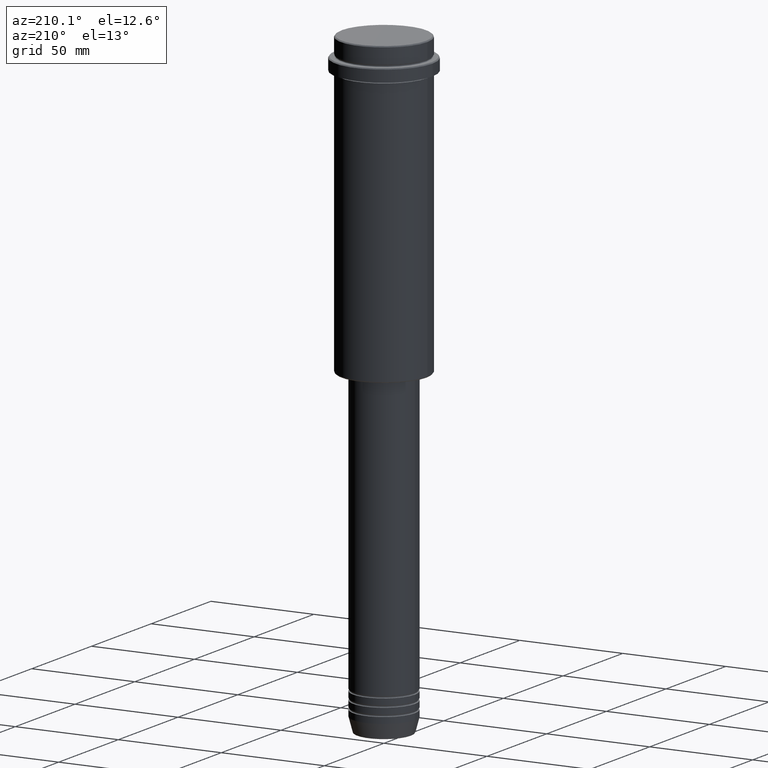
[diagram: clean part render]
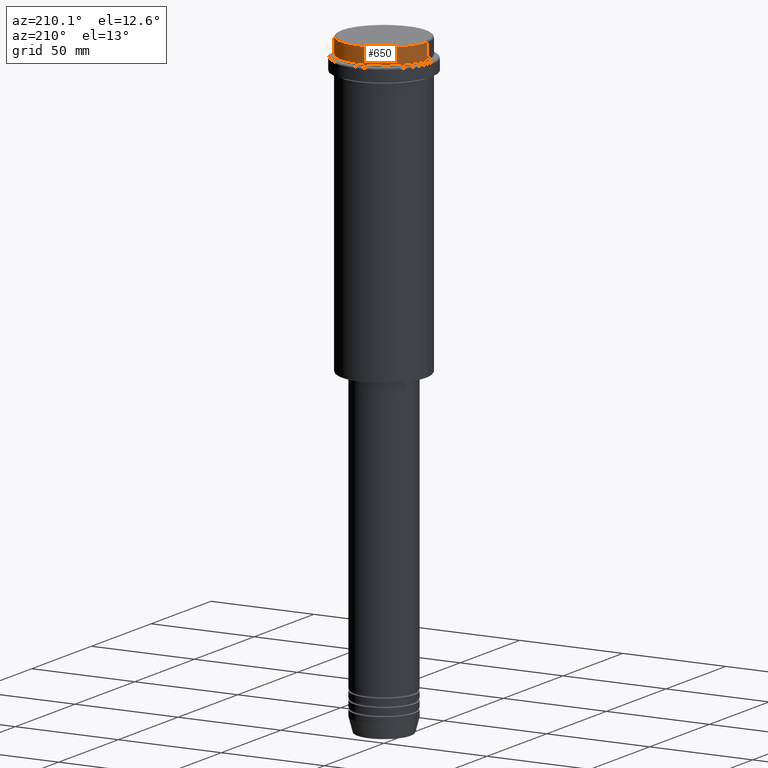
[diagram: same view with one face highlighted and labeled with its STEP entity id]
A machine part, auxiliary view. The second image highlights one B-rep face of the part: STEP entity #650.
In plain terms, the highlighted cylindrical surface (partial cylindrical patch) has radius 21 mm, axis along (-0, -0, 1).
Its self-contained STEP definition (entity closure, byte-faithful):
#54 = ORIENTED_EDGE ( 'NONE', *, *, #1259, .F. ) ;
#130 = EDGE_LOOP ( 'NONE', ( #496, #516, #820, #54 ) ) ;
#180 = CARTESIAN_POINT ( 'NONE',  ( -21.00000000000000000, 2.571758278209441661E-15, 0.000000000000000000 ) ) ;
#284 = LINE ( 'NONE', #180, #1417 ) ;
#342 = CIRCLE ( 'NONE', #1416, 21.00000000000000000 ) ;
#373 = DIRECTION ( 'NONE',  ( 1.000000000000000000, 0.000000000000000000, 0.000000000000000000 ) ) ;
#388 = CARTESIAN_POINT ( 'NONE',  ( 0.000000000000000000, 0.000000000000000000, 0.000000000000000000 ) ) ;
#426 = VERTEX_POINT ( 'NONE', #778 ) ;
#493 = DIRECTION ( 'NONE',  ( -0.000000000000000000, -0.000000000000000000, 1.000000000000000000 ) ) ;
#496 = ORIENTED_EDGE ( 'NONE', *, *, #639, .T. ) ;
#501 = FACE_OUTER_BOUND ( 'NONE', #130, .T. ) ;
#516 = ORIENTED_EDGE ( 'NONE', *, *, #1279, .T. ) ;
#552 = CARTESIAN_POINT ( 'NONE',  ( -21.00000000000000000, 2.571758278209441661E-15, -7.999999999999998224 ) ) ;
#575 = VERTEX_POINT ( 'NONE', #1125 ) ;
#595 = CARTESIAN_POINT ( 'NONE',  ( 0.000000000000000000, 0.000000000000000000, -7.999999999999998224 ) ) ;
#616 = DIRECTION ( 'NONE',  ( 1.000000000000000000, 0.000000000000000000, 0.000000000000000000 ) ) ;
#624 = VECTOR ( 'NONE', #1150, 1000.000000000000000 ) ;
#639 = EDGE_CURVE ( 'NONE', #426, #842, #1363, .T. ) ;
#650 = ADVANCED_FACE ( 'NONE', ( #501 ), #1368, .T. ) ;
#725 = LINE ( 'NONE', #1283, #624 ) ;
#761 = CARTESIAN_POINT ( 'NONE',  ( -21.00000000000000000, 2.571758278209441661E-15, -0.4999999999999553690 ) ) ;
#772 = VERTEX_POINT ( 'NONE', #761 ) ;
#778 = CARTESIAN_POINT ( 'NONE',  ( 21.00000000000000000, 0.000000000000000000, -7.999999999999998224 ) ) ;
#815 = DIRECTION ( 'NONE',  ( -0.000000000000000000, -0.000000000000000000, 1.000000000000000000 ) ) ;
#820 = ORIENTED_EDGE ( 'NONE', *, *, #1142, .T. ) ;
#837 = CARTESIAN_POINT ( 'NONE',  ( 0.000000000000000000, 0.000000000000000000, -0.4999999999999553690 ) ) ;
#842 = VERTEX_POINT ( 'NONE', #552 ) ;
#853 = AXIS2_PLACEMENT_3D ( 'NONE', #595, #815, #1153 ) ;
#1058 = DIRECTION ( 'NONE',  ( -0.000000000000000000, -0.000000000000000000, 1.000000000000000000 ) ) ;
#1125 = CARTESIAN_POINT ( 'NONE',  ( 21.00000000000000000, 0.000000000000000000, -0.4999999999999553690 ) ) ;
#1142 = EDGE_CURVE ( 'NONE', #772, #575, #342, .T. ) ;
#1150 = DIRECTION ( 'NONE',  ( -0.000000000000000000, -0.000000000000000000, 1.000000000000000000 ) ) ;
#1153 = DIRECTION ( 'NONE',  ( 1.000000000000000000, 0.000000000000000000, 0.000000000000000000 ) ) ;
#1183 = AXIS2_PLACEMENT_3D ( 'NONE', #388, #493, #373 ) ;
#1259 = EDGE_CURVE ( 'NONE', #426, #575, #725, .T. ) ;
#1279 = EDGE_CURVE ( 'NONE', #842, #772, #284, .T. ) ;
#1283 = CARTESIAN_POINT ( 'NONE',  ( 21.00000000000000000, 0.000000000000000000, 0.000000000000000000 ) ) ;
#1363 = CIRCLE ( 'NONE', #853, 21.00000000000000000 ) ;
#1368 = CYLINDRICAL_SURFACE ( 'NONE', #1183, 21.00000000000000000 ) ;
#1373 = DIRECTION ( 'NONE',  ( 0.000000000000000000, 0.000000000000000000, -1.000000000000000000 ) ) ;
#1416 = AXIS2_PLACEMENT_3D ( 'NONE', #837, #1373, #616 ) ;
#1417 = VECTOR ( 'NONE', #1058, 1000.000000000000000 ) ;